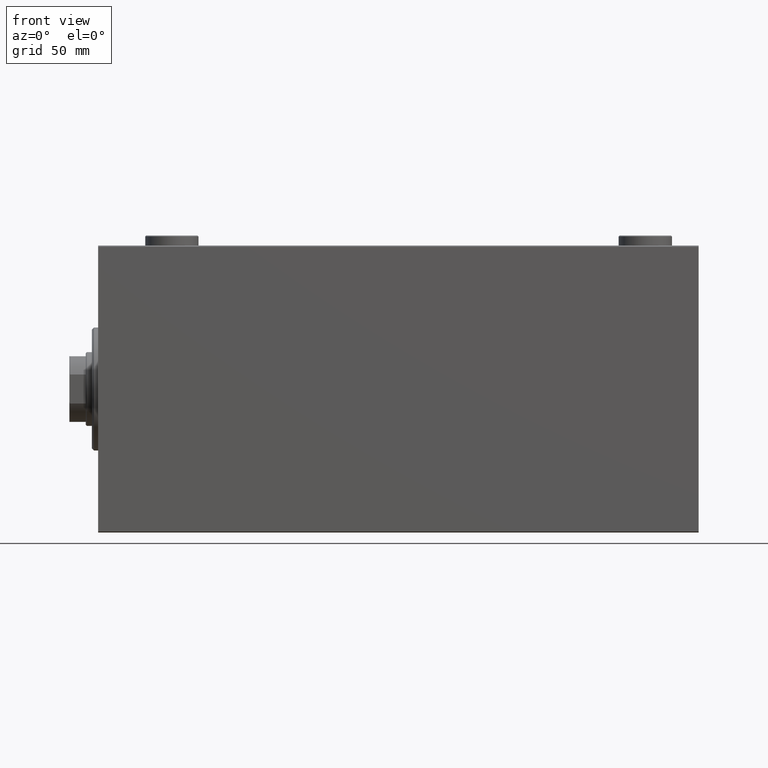
[diagram: clean part render]
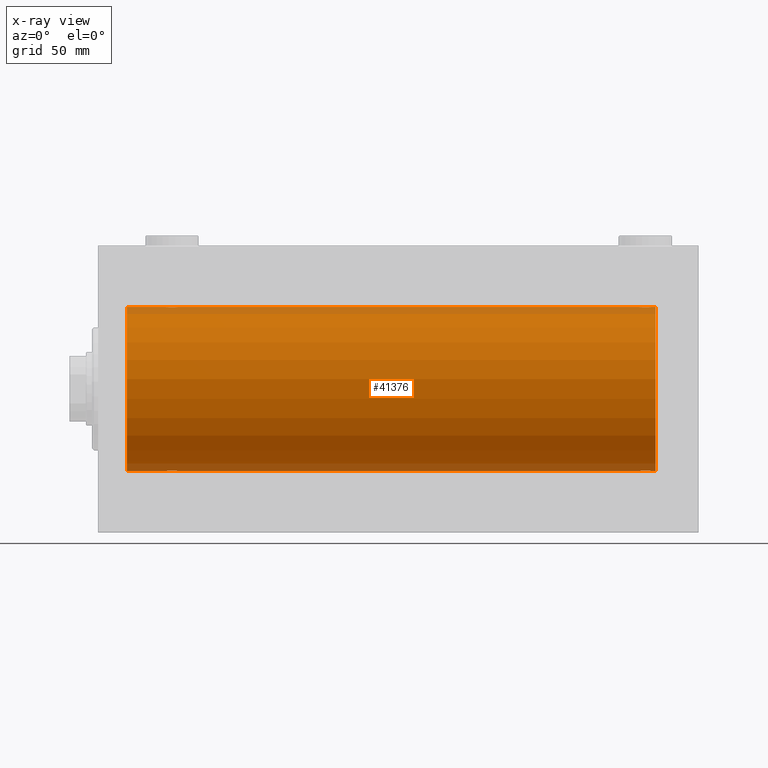
[diagram: x-ray — body ghosted, one internal face saturated and labeled with its STEP entity id]
A machine part, front view, then the same camera in x-ray: the body is ghosted and one INTERNAL B-rep face — a face not visible from any outside direction — is saturated and labeled: STEP entity #41376.
In plain terms, the highlighted cylindrical surface (partial cylindrical patch) has radius 40 mm, axis along (-1, -0, -0).
Its self-contained STEP definition (entity closure, byte-faithful):
#123 = CARTESIAN_POINT ( 'NONE',  ( 38.99999999999999289, -0.1957844162750510819, -40.00000000000000711 ) ) ;
#137 = CARTESIAN_POINT ( 'NONE',  ( 34.01538552187719233, -2.258217541132905293, 39.93644519243653690 ) ) ;
#347 = CARTESIAN_POINT ( 'NONE',  ( 33.30462992291564461, -1.331594428131640528, -39.97823692017208685 ) ) ;
#1217 = B_SPLINE_CURVE_WITH_KNOTS ( 'NONE', 3,
 ( #41944, #123, #7513, #38699, #35231, #42399, #20903, #31091, #17437, #17207, #10283, #41712, #34550, #7286, #10735, #21369, #2909, #35460, #24383, #45646, #31776, #10055, #31319, #14213, #27637, #17899, #24146, #31998, #347, #38470, #6590, #14437 ),
 .UNSPECIFIED., .F., .F.,
 ( 4, 2, 2, 2, 2, 2, 2, 2, 2, 2, 2, 2, 2, 2, 2, 4 ),
 ( 0.009382660366305110508, 0.009968941372944146312, 0.01055522237958318212, 0.01114150338622221792, 0.01172778439286125372, 0.01231406539950028953, 0.01290034640613932533, 0.01348662741277836113, 0.01407290841941739694, 0.01465918942605643274, 0.01524547043269546855, 0.01583175143933450435, 0.01641803244597354189, 0.01700431345261257596, 0.01759059445925161003, 0.01876315647252968163 ),
 .UNSPECIFIED. ) ;
#1549 = AXIS2_PLACEMENT_3D ( 'NONE', #11753, #14545, #7616 ) ;
#1778 = CARTESIAN_POINT ( 'NONE',  ( 268.9813627951422177, -2.261082456166725763, 39.93628274425758917 ) ) ;
#2001 = CARTESIAN_POINT ( 'NONE',  ( 269.2582967032049623, -1.984537326394329781, 39.95097977400578060 ) ) ;
#2027 = DIRECTION ( 'NONE',  ( -1.000000000000000000, -0.000000000000000000, -0.000000000000000000 ) ) ;
#2072 = LINE ( 'NONE', #16165, #32338 ) ;
#2218 = CARTESIAN_POINT ( 'NONE',  ( 272.0000000000000000, 0.000000000000000000, 40.00000000000000000 ) ) ;
#2333 = CARTESIAN_POINT ( 'NONE',  ( 266.6089030749068343, -2.980812880639920337, -39.88879797994688658 ) ) ;
#2780 = VERTEX_POINT ( 'NONE', #8063 ) ;
#2785 = CARTESIAN_POINT ( 'NONE',  ( 269.9042517365134586, -0.7773146824711015812, -39.99291453282344122 ) ) ;
#2873 = CIRCLE ( 'NONE', #34592, 40.00000000000000000 ) ;
#2909 = CARTESIAN_POINT ( 'NONE',  ( 36.20041286019198168, -2.999840380514735116, -39.88735335562824957 ) ) ;
#3371 = CARTESIAN_POINT ( 'NONE',  ( 37.32853644746295885, -2.696981015661930936, 39.90904630908465833 ) ) ;
#3590 = B_SPLINE_CURVE_WITH_KNOTS ( 'NONE', 3,
 ( #24349, #16329, #26964, #12387, #12624, #37343, #44526, #26733, #10476, #9391, #34741, #19564, #23489, #37575, #31285, #38433, #34968, #13706, #41907, #17406, #24575, #33424, #33655, #5243, #1778, #2001, #16098, #40820, #23259, #5694, #25258, #38891 ),
 .UNSPECIFIED., .F., .F.,
 ( 4, 2, 2, 2, 2, 2, 2, 2, 2, 2, 2, 2, 2, 2, 2, 4 ),
 ( 0.009382660366305044589, 0.009968941372944078658, 0.01055522237958311273, 0.01114150338622214680, 0.01172778439286118086, 0.01231406539950021493, 0.01290034640613924727, 0.01348662741277828134, 0.01407290841941731541, 0.01465918942605634948, 0.01524547043269538354, 0.01583175143933441761, 0.01641803244597345168, 0.01700431345261248575, 0.01759059445925151982, 0.01876315647252958796 ),
 .UNSPECIFIED. ) ;
#4521 = VECTOR ( 'NONE', #28830, 1000.000000000000000 ) ;
#5243 = CARTESIAN_POINT ( 'NONE',  ( 268.8269018463240627, -2.387636253591819191, 39.92882473497732576 ) ) ;
#5452 = VECTOR ( 'NONE', #40898, 1000.000000000000000 ) ;
#5694 = CARTESIAN_POINT ( 'NONE',  ( 269.9202617499163921, -0.7903958539027420294, 39.99381900068937057 ) ) ;
#5919 = CARTESIAN_POINT ( 'NONE',  ( 33.09574826348647036, -0.7773146824711036906, 39.99291453282343412 ) ) ;
#6019 = CARTESIAN_POINT ( 'NONE',  ( 269.8466527301315523, -0.9668189122103195698, -39.98872185468385965 ) ) ;
#6047 = EDGE_LOOP ( 'NONE', ( #12898, #25089, #18511, #26399, #15179, #22497, #20520, #43237, #23898, #17657, #35484, #29899 ) ) ;
#6162 = EDGE_CURVE ( 'NONE', #38399, #2780, #2873, .T. ) ;
#6246 = CARTESIAN_POINT ( 'NONE',  ( 266.8043946892691451, -3.000157693440651752, -39.88732948994959315 ) ) ;
#6468 = CARTESIAN_POINT ( 'NONE',  ( 265.0186372048576686, -2.261082456166741750, -39.93628274425758207 ) ) ;
#6590 = CARTESIAN_POINT ( 'NONE',  ( 32.99999999999998579, -0.3964922677423637909, -39.99999999999998579 ) ) ;
#7066 = CARTESIAN_POINT ( 'NONE',  ( 36.96489325853514174, -2.847401743820462183, 39.89859630624607689 ) ) ;
#7286 = CARTESIAN_POINT ( 'NONE',  ( 36.96938341894465907, -2.845855236045336856, -39.89870693240651178 ) ) ;
#7307 = VERTEX_POINT ( 'NONE', #29473 ) ;
#7332 = CARTESIAN_POINT ( 'NONE',  ( 263.9999999999999432, -1.484439008399638965E-23, 40.00000000000000000 ) ) ;
#7375 = CARTESIAN_POINT ( 'NONE',  ( 263.9999999999999432, -1.926289969554161054E-14, -40.00000000000000000 ) ) ;
#7513 = CARTESIAN_POINT ( 'NONE',  ( 38.98101877110926239, -0.3904143323715931757, -39.99856256910221219 ) ) ;
#7616 = DIRECTION ( 'NONE',  ( 0.000000000000000000, 0.000000000000000000, 1.000000000000000000 ) ) ;
#7977 = DIRECTION ( 'NONE',  ( -1.000000000000000000, -0.000000000000000000, -0.000000000000000000 ) ) ;
#8063 = CARTESIAN_POINT ( 'NONE',  ( 272.0000000000000000, 0.000000000000000000, 40.00000000000000000 ) ) ;
#8103 = EDGE_CURVE ( 'NONE', #41519, #42830, #25794, .T. ) ;
#8374 = B_SPLINE_CURVE_WITH_KNOTS ( 'NONE', 3,
 ( #41134, #27054, #37671, #2785, #6019, #23806, #33982, #9486, #30745, #13171, #45520, #20111, #37899, #13855, #24495, #27287, #38581, #6246, #2333, #20336, #17091, #27976, #10393, #16415, #6468, #16868, #44611, #30979, #20563, #45070, #41596, #24033 ),
 .UNSPECIFIED., .F., .F.,
 ( 4, 2, 2, 2, 2, 2, 2, 2, 2, 2, 2, 2, 2, 2, 2, 4 ),
 ( 0.009382660366305030711, 0.009968941372944066515, 0.01055522237958310232, 0.01114150338622213812, 0.01172778439286117393, 0.01231406539950020973, 0.01290034640613924553, 0.01348662741277828134, 0.01407290841941731541, 0.01465918942605635295, 0.01524547043269538875, 0.01583175143933442455, 0.01641803244597345862, 0.01700431345261249616, 0.01759059445925153023, 0.01876315647252959837 ),
 .UNSPECIFIED. ) ;
#8962 = CARTESIAN_POINT ( 'NONE',  ( 272.0000000000000000, 4.898587196589413026E-15, -40.00000000000000000 ) ) ;
#9370 = DIRECTION ( 'NONE',  ( -1.000000000000000000, -0.000000000000000000, -0.000000000000000000 ) ) ;
#9391 = CARTESIAN_POINT ( 'NONE',  ( 265.0153855218772492, -2.258217541132919504, 39.93644519243652979 ) ) ;
#9394 = EDGE_CURVE ( 'NONE', #7307, #21052, #8374, .T. ) ;
#9486 = CARTESIAN_POINT ( 'NONE',  ( 269.3850760091535790, -1.830402106103521387, -39.95843610133493229 ) ) ;
#9617 = CARTESIAN_POINT ( 'NONE',  ( 33.15334726986859692, -0.9668189122103387767, 39.98872185468385254 ) ) ;
#9690 = CARTESIAN_POINT ( 'NONE',  ( 32.99999999999999289, 4.605585004310627937E-15, -40.00000000000000000 ) ) ;
#10055 = CARTESIAN_POINT ( 'NONE',  ( 34.67146355253704826, -2.696981015661917613, -39.90904630908468675 ) ) ;
#10283 = CARTESIAN_POINT ( 'NONE',  ( 37.83044822822401443, -2.384933850258100119, -39.92898715513241115 ) ) ;
#10393 = CARTESIAN_POINT ( 'NONE',  ( 265.4991153159596138, -2.604941918888328711, -39.91523680494983495 ) ) ;
#10476 = CARTESIAN_POINT ( 'NONE',  ( 264.7390238300525311, -1.981471132463184848, 39.95113231465138881 ) ) ;
#10735 = CARTESIAN_POINT ( 'NONE',  ( 36.77869523415743913, -2.903766417398228938, -39.89448096967571900 ) ) ;
#11003 = VERTEX_POINT ( 'NONE', #33134 ) ;
#11204 = CARTESIAN_POINT ( 'NONE',  ( 33.39566400087915810, -1.502129635934004614, 39.97212271185186694 ) ) ;
#11753 = CARTESIAN_POINT ( 'NONE',  ( 272.0000000000000000, 0.000000000000000000, 0.000000000000000000 ) ) ;
#12387 = CARTESIAN_POINT ( 'NONE',  ( 264.0957482634864277, -0.7773146824711030245, 39.99291453282344833 ) ) ;
#12624 = CARTESIAN_POINT ( 'NONE',  ( 264.1533472698686182, -0.9668189122103363342, 39.98872185468384544 ) ) ;
#12898 = ORIENTED_EDGE ( 'NONE', *, *, #6162, .F. ) ;
#13171 = CARTESIAN_POINT ( 'NONE',  ( 268.9846144781228645, -2.258217541132895967, -39.93644519243652979 ) ) ;
#13706 = CARTESIAN_POINT ( 'NONE',  ( 267.1956053107309117, -3.000157693440636208, 39.88732948994960026 ) ) ;
#13855 = CARTESIAN_POINT ( 'NONE',  ( 267.9693834189445738, -2.845855236045354619, -39.89870693240649757 ) ) ;
#14213 = CARTESIAN_POINT ( 'NONE',  ( 34.17309815367588754, -2.387636253591812974, -39.92882473497732576 ) ) ;
#14225 = CARTESIAN_POINT ( 'NONE',  ( 33.73902383005257377, -1.981471132463168416, 39.95113231465138881 ) ) ;
#14437 = CARTESIAN_POINT ( 'NONE',  ( 32.99999999999999289, 4.605585004310627937E-15, -40.00000000000000000 ) ) ;
#14452 = CARTESIAN_POINT ( 'NONE',  ( 38.60188728128492386, -1.506322235190783232, 39.97196309111974699 ) ) ;
#14512 = VERTEX_POINT ( 'NONE', #9690 ) ;
#14545 = DIRECTION ( 'NONE',  ( -1.000000000000000000, -0.000000000000000000, -0.000000000000000000 ) ) ;
#14685 = LINE ( 'NONE', #25310, #24090 ) ;
#14952 = CARTESIAN_POINT ( 'NONE',  ( 272.0000000000000000, 4.898587196589413026E-15, -40.00000000000000000 ) ) ;
#15179 = ORIENTED_EDGE ( 'NONE', *, *, #33094, .T. ) ;
#15805 = EDGE_CURVE ( 'NONE', #38399, #7307, #26812, .T. ) ;
#16098 = CARTESIAN_POINT ( 'NONE',  ( 269.3825168091145770, -1.833695109615707697, 39.95828327492363741 ) ) ;
#16165 = CARTESIAN_POINT ( 'NONE',  ( 272.0000000000000000, 0.000000000000000000, 40.00000000000000000 ) ) ;
#16329 = CARTESIAN_POINT ( 'NONE',  ( 263.9999999999999432, -0.1957844162750541073, 39.99999999999999289 ) ) ;
#16415 = CARTESIAN_POINT ( 'NONE',  ( 265.1730981536758804, -2.387636253591832514, -39.92882473497732576 ) ) ;
#16868 = CARTESIAN_POINT ( 'NONE',  ( 264.7417032967949808, -1.984537326394346213, -39.95097977400578060 ) ) ;
#17091 = CARTESIAN_POINT ( 'NONE',  ( 266.0351067414648583, -2.847401743820479503, -39.89859630624608400 ) ) ;
#17207 = CARTESIAN_POINT ( 'NONE',  ( 37.98461447812278635, -2.258217541132897743, -39.93644519243654400 ) ) ;
#17406 = CARTESIAN_POINT ( 'NONE',  ( 267.7745567882633395, -2.904869018727233687, 39.89440043036668726 ) ) ;
#17437 = CARTESIAN_POINT ( 'NONE',  ( 38.26097616994740491, -1.981471132463162643, -39.95113231465139592 ) ) ;
#17448 = CARTESIAN_POINT ( 'NONE',  ( 34.49556917086533758, -2.602909538701760006, 39.91537030566259148 ) ) ;
#17657 = ORIENTED_EDGE ( 'NONE', *, *, #30592, .F. ) ;
#17684 = CARTESIAN_POINT ( 'NONE',  ( 34.16955177177597847, -2.384933850258112553, 39.92898715513240404 ) ) ;
#17899 = CARTESIAN_POINT ( 'NONE',  ( 33.74170329679496660, -1.984537326394300250, -39.95097977400577349 ) ) ;
#18511 = ORIENTED_EDGE ( 'NONE', *, *, #9394, .T. ) ;
#18679 = EDGE_CURVE ( 'NONE', #11003, #25017, #45090, .T. ) ;
#19564 = CARTESIAN_POINT ( 'NONE',  ( 265.4955691708652239, -2.602909538701744019, 39.91537030566259148 ) ) ;
#20111 = CARTESIAN_POINT ( 'NONE',  ( 268.5044308291347193, -2.602909538701752457, -39.91537030566259148 ) ) ;
#20336 = CARTESIAN_POINT ( 'NONE',  ( 266.2254432117366036, -2.904869018727250118, -39.89440043036668015 ) ) ;
#20520 = ORIENTED_EDGE ( 'NONE', *, *, #8103, .T. ) ;
#20563 = CARTESIAN_POINT ( 'NONE',  ( 264.3046299229155807, -1.331594428131661179, -39.97823692017209396 ) ) ;
#20903 = CARTESIAN_POINT ( 'NONE',  ( 38.60433599912083480, -1.502129635934000396, -39.97212271185185273 ) ) ;
#20917 = CARTESIAN_POINT ( 'NONE',  ( 37.50088468404035069, -2.604941918888315833, 39.91523680494983495 ) ) ;
#21052 = VERTEX_POINT ( 'NONE', #7375 ) ;
#21369 = CARTESIAN_POINT ( 'NONE',  ( 36.39522483453576029, -2.980272303779541332, -39.88883864243169342 ) ) ;
#21370 = AXIS2_PLACEMENT_3D ( 'NONE', #33830, #31062, #24114 ) ;
#21695 = FACE_OUTER_BOUND ( 'NONE', #6047, .T. ) ;
#22486 = EDGE_CURVE ( 'NONE', #31563, #30035, #3590, .T. ) ;
#22497 = ORIENTED_EDGE ( 'NONE', *, *, #38084, .T. ) ;
#23259 = CARTESIAN_POINT ( 'NONE',  ( 269.6953700770843056, -1.331594428131646524, 39.97823692017208685 ) ) ;
#23338 = CARTESIAN_POINT ( 'NONE',  ( 272.0000000000000000, 4.898587196589413026E-15, -40.00000000000000000 ) ) ;
#23489 = CARTESIAN_POINT ( 'NONE',  ( 265.6677573113412905, -2.695129988695732504, 39.90917164320281785 ) ) ;
#23712 = CARTESIAN_POINT ( 'NONE',  ( 33.30278659419118270, -1.327859336864150253, 39.97836169682017982 ) ) ;
#23806 = CARTESIAN_POINT ( 'NONE',  ( 269.6972134058087818, -1.327859336864133821, -39.97836169682017982 ) ) ;
#23898 = ORIENTED_EDGE ( 'NONE', *, *, #18679, .T. ) ;
#24033 = CARTESIAN_POINT ( 'NONE',  ( 263.9999999999999432, -1.926289969554161054E-14, -40.00000000000000000 ) ) ;
#24090 = VECTOR ( 'NONE', #7977, 1000.000000000000000 ) ;
#24114 = DIRECTION ( 'NONE',  ( 0.000000000000000000, 0.000000000000000000, 1.000000000000000000 ) ) ;
#24146 = CARTESIAN_POINT ( 'NONE',  ( 33.61748319088535908, -1.833695109615714802, -39.95828327492363741 ) ) ;
#24349 = CARTESIAN_POINT ( 'NONE',  ( 263.9999999999999432, -1.484439008399638965E-23, 40.00000000000000000 ) ) ;
#24383 = CARTESIAN_POINT ( 'NONE',  ( 35.60890307490667794, -2.980812880639892359, -39.88879797994688658 ) ) ;
#24397 = CARTESIAN_POINT ( 'NONE',  ( 35.60477516546423260, -2.980272303779553766, 39.88883864243167920 ) ) ;
#24495 = CARTESIAN_POINT ( 'NONE',  ( 267.7786952341574533, -2.903766417398232047, -39.89448096967571189 ) ) ;
#24575 = CARTESIAN_POINT ( 'NONE',  ( 267.9648932585351417, -2.847401743820463516, 39.89859630624608400 ) ) ;
#24667 = LINE ( 'NONE', #14952, #4521 ) ;
#24852 = CARTESIAN_POINT ( 'NONE',  ( 35.22130476584258219, -2.903766417398241373, 39.89448096967571189 ) ) ;
#25017 = VERTEX_POINT ( 'NONE', #39315 ) ;
#25089 = ORIENTED_EDGE ( 'NONE', *, *, #15805, .T. ) ;
#25258 = CARTESIAN_POINT ( 'NONE',  ( 269.9999999999999432, -0.3964922677423687869, 40.00000000000000000 ) ) ;
#25310 = CARTESIAN_POINT ( 'NONE',  ( 272.0000000000000000, 0.000000000000000000, 40.00000000000000000 ) ) ;
#25794 = CIRCLE ( 'NONE', #21370, 40.00000000000000000 ) ;
#26399 = ORIENTED_EDGE ( 'NONE', *, *, #43458, .T. ) ;
#26606 = CARTESIAN_POINT ( 'NONE',  ( 39.00000000000000000, 4.898587181754971267E-15, -40.00000000000000000 ) ) ;
#26733 = CARTESIAN_POINT ( 'NONE',  ( 264.6149239908463642, -1.830402106103510729, 39.95843610133493229 ) ) ;
#26812 = LINE ( 'NONE', #23338, #5452 ) ;
#26964 = CARTESIAN_POINT ( 'NONE',  ( 264.0189812288907660, -0.3904143323715977831, 39.99856256910221219 ) ) ;
#26994 = CARTESIAN_POINT ( 'NONE',  ( 14.00000000000001243, 4.898587196589413026E-15, -40.00000000000000000 ) ) ;
#27054 = CARTESIAN_POINT ( 'NONE',  ( 269.9999999999999432, -0.1957844162750511097, -39.99999999999999289 ) ) ;
#27146 = CARTESIAN_POINT ( 'NONE',  ( 272.0000000000000000, 0.000000000000000000, 0.000000000000000000 ) ) ;
#27163 = CARTESIAN_POINT ( 'NONE',  ( 269.9999999999999432, -3.437435726281339749E-15, 40.00000000000000000 ) ) ;
#27207 = EDGE_CURVE ( 'NONE', #11003, #42830, #14685, .T. ) ;
#27287 = CARTESIAN_POINT ( 'NONE',  ( 267.3952248345357816, -2.980272303779554655, -39.88883864243167920 ) ) ;
#27637 = CARTESIAN_POINT ( 'NONE',  ( 34.01863720485770415, -2.261082456166700005, -39.93628274425758917 ) ) ;
#27976 = CARTESIAN_POINT ( 'NONE',  ( 265.6714635525369772, -2.696981015661948700, -39.90904630908467254 ) ) ;
#28133 = DIRECTION ( 'NONE',  ( -1.000000000000000000, -0.000000000000000000, -0.000000000000000000 ) ) ;
#28341 = CARTESIAN_POINT ( 'NONE',  ( 34.66775731134134730, -2.695129988695744494, 39.90917164320281074 ) ) ;
#28559 = CARTESIAN_POINT ( 'NONE',  ( 36.39109692509333627, -2.980812880639903906, 39.88879797994688658 ) ) ;
#28830 = DIRECTION ( 'NONE',  ( -1.000000000000000000, -0.000000000000000000, -0.000000000000000000 ) ) ;
#29110 = CYLINDRICAL_SURFACE ( 'NONE', #1549, 40.00000000000000000 ) ;
#29473 = CARTESIAN_POINT ( 'NONE',  ( 269.9999999999999432, 4.898587181745110505E-15, -40.00000000000000000 ) ) ;
#29899 = ORIENTED_EDGE ( 'NONE', *, *, #43675, .F. ) ;
#30035 = VERTEX_POINT ( 'NONE', #27163 ) ;
#30592 = EDGE_CURVE ( 'NONE', #31563, #25017, #2072, .T. ) ;
#30614 = DIRECTION ( 'NONE',  ( -1.000000000000000000, 0.000000000000000000, 0.000000000000000000 ) ) ;
#30745 = CARTESIAN_POINT ( 'NONE',  ( 269.2609761699474120, -1.981471132463155316, -39.95113231465140302 ) ) ;
#30979 = CARTESIAN_POINT ( 'NONE',  ( 264.3981127187150264, -1.506322235190789893, -39.97196309111975410 ) ) ;
#31062 = DIRECTION ( 'NONE',  ( -1.000000000000000000, 0.000000000000000000, 0.000000000000000000 ) ) ;
#31091 = CARTESIAN_POINT ( 'NONE',  ( 38.38507600915353635, -1.830402106103512505, -39.95843610133493229 ) ) ;
#31285 = CARTESIAN_POINT ( 'NONE',  ( 266.2213047658424898, -2.903766417398230715, 39.89448096967571189 ) ) ;
#31319 = CARTESIAN_POINT ( 'NONE',  ( 34.49911531595966352, -2.604941918888306507, -39.91523680494982784 ) ) ;
#31332 = CARTESIAN_POINT ( 'NONE',  ( 36.19560531073086906, -3.000157693440643758, 39.88732948994960026 ) ) ;
#31563 = VERTEX_POINT ( 'NONE', #7332 ) ;
#31776 = CARTESIAN_POINT ( 'NONE',  ( 35.03510674146484405, -2.847401743820449305, -39.89859630624607689 ) ) ;
#31790 = CARTESIAN_POINT ( 'NONE',  ( 37.82690184632411246, -2.387636253591820079, 39.92882473497731866 ) ) ;
#31998 = CARTESIAN_POINT ( 'NONE',  ( 33.39811271871507614, -1.506322235190781456, -39.97196309111974699 ) ) ;
#32338 = VECTOR ( 'NONE', #28133, 1000.000000000000000 ) ;
#33094 = EDGE_CURVE ( 'NONE', #33610, #14512, #1217, .T. ) ;
#33134 = CARTESIAN_POINT ( 'NONE',  ( 32.99999999999999289, -1.483452932268112700E-23, 40.00000000000000000 ) ) ;
#33424 = CARTESIAN_POINT ( 'NONE',  ( 268.3285364474628523, -2.696981015661932712, 39.90904630908467254 ) ) ;
#33451 = LINE ( 'NONE', #8962, #34671 ) ;
#33610 = VERTEX_POINT ( 'NONE', #26606 ) ;
#33655 = CARTESIAN_POINT ( 'NONE',  ( 268.5008846840403294, -2.604941918888314056, 39.91523680494982784 ) ) ;
#33830 = CARTESIAN_POINT ( 'NONE',  ( 14.00000000000001243, 0.000000000000000000, 0.000000000000000000 ) ) ;
#33982 = CARTESIAN_POINT ( 'NONE',  ( 269.6043359991208490, -1.502129635934004837, -39.97212271185185983 ) ) ;
#34550 = CARTESIAN_POINT ( 'NONE',  ( 37.33224268865864559, -2.695129988695729839, -39.90917164320280364 ) ) ;
#34592 = AXIS2_PLACEMENT_3D ( 'NONE', #27146, #30614, #39938 ) ;
#34671 = VECTOR ( 'NONE', #2027, 1000.000000000000000 ) ;
#34741 = CARTESIAN_POINT ( 'NONE',  ( 265.1695517717758435, -2.384933850258093013, 39.92898715513240404 ) ) ;
#34968 = CARTESIAN_POINT ( 'NONE',  ( 266.7995871398080112, -2.999840380514743110, 39.88735335562824957 ) ) ;
#35017 = CARTESIAN_POINT ( 'NONE',  ( 37.98136279514229585, -2.261082456166707111, 39.93628274425758207 ) ) ;
#35231 = CARTESIAN_POINT ( 'NONE',  ( 38.84665273013138176, -0.9668189122103333366, -39.98872185468385254 ) ) ;
#35460 = CARTESIAN_POINT ( 'NONE',  ( 35.80439468926913804, -3.000157693440631324, -39.88732948994960026 ) ) ;
#35477 = CARTESIAN_POINT ( 'NONE',  ( 35.79958713980802543, -2.999840380514749327, 39.88735335562824247 ) ) ;
#35484 = ORIENTED_EDGE ( 'NONE', *, *, #22486, .T. ) ;
#37343 = CARTESIAN_POINT ( 'NONE',  ( 264.3027865941911614, -1.327859336864147810, 39.97836169682016561 ) ) ;
#37568 = CARTESIAN_POINT ( 'NONE',  ( 32.99999999999997158, -0.1957844162750552452, 40.00000000000000000 ) ) ;
#37575 = CARTESIAN_POINT ( 'NONE',  ( 266.0306165810552557, -2.845855236045339076, 39.89870693240651178 ) ) ;
#37671 = CARTESIAN_POINT ( 'NONE',  ( 269.9810187711091203, -0.3904143323715956182, -39.99856256910220509 ) ) ;
#37899 = CARTESIAN_POINT ( 'NONE',  ( 268.3322426886587095, -2.695129988695749379, -39.90917164320281074 ) ) ;
#38084 = EDGE_CURVE ( 'NONE', #14512, #41519, #33451, .T. ) ;
#38251 = CARTESIAN_POINT ( 'NONE',  ( 38.38251680911464803, -1.833695109615718355, 39.95828327492363741 ) ) ;
#38399 = VERTEX_POINT ( 'NONE', #42558 ) ;
#38433 = CARTESIAN_POINT ( 'NONE',  ( 266.6047751654642752, -2.980272303779546217, 39.88883864243167920 ) ) ;
#38470 = CARTESIAN_POINT ( 'NONE',  ( 33.07973825008353685, -0.7903958539027382546, -39.99381900068937767 ) ) ;
#38581 = CARTESIAN_POINT ( 'NONE',  ( 267.2004128601919888, -2.999840380514759985, -39.88735335562824247 ) ) ;
#38699 = CARTESIAN_POINT ( 'NONE',  ( 38.90425173651351543, -0.7773146824710984726, -39.99291453282344122 ) ) ;
#38714 = CARTESIAN_POINT ( 'NONE',  ( 39.00000000000000000, 1.037715139942869821E-15, 40.00000000000000000 ) ) ;
#38891 = CARTESIAN_POINT ( 'NONE',  ( 269.9999999999999432, -3.437435726281339749E-15, 40.00000000000000000 ) ) ;
#38942 = CARTESIAN_POINT ( 'NONE',  ( 33.61492399084646365, -1.830402106103518722, 39.95843610133494650 ) ) ;
#39177 = CARTESIAN_POINT ( 'NONE',  ( 35.03061658105534804, -2.845855236045349734, 39.89870693240651889 ) ) ;
#39315 = CARTESIAN_POINT ( 'NONE',  ( 39.00000000000000000, 1.037715139942869821E-15, 40.00000000000000000 ) ) ;
#39938 = DIRECTION ( 'NONE',  ( 0.000000000000000000, 0.000000000000000000, 1.000000000000000000 ) ) ;
#40820 = CARTESIAN_POINT ( 'NONE',  ( 269.6018872812848031, -1.506322235190773240, 39.97196309111975410 ) ) ;
#40898 = DIRECTION ( 'NONE',  ( -1.000000000000000000, -0.000000000000000000, -0.000000000000000000 ) ) ;
#41038 = CARTESIAN_POINT ( 'NONE',  ( 32.99999999999999289, -1.483452932268112700E-23, 40.00000000000000000 ) ) ;
#41134 = CARTESIAN_POINT ( 'NONE',  ( 269.9999999999999432, 4.898587181745110505E-15, -40.00000000000000000 ) ) ;
#41271 = CARTESIAN_POINT ( 'NONE',  ( 33.01898122889073051, -0.3904143323715976166, 39.99856256910221219 ) ) ;
#41376 = ADVANCED_FACE ( 'NONE', ( #21695 ), #29110, .F. ) ;
#41519 = VERTEX_POINT ( 'NONE', #26994 ) ;
#41596 = CARTESIAN_POINT ( 'NONE',  ( 263.9999999999998863, -0.3964922677423949327, -40.00000000000000000 ) ) ;
#41712 = CARTESIAN_POINT ( 'NONE',  ( 37.50443082913466242, -2.602909538701748016, -39.91537030566259148 ) ) ;
#41713 = LINE ( 'NONE', #2218, #44407 ) ;
#41907 = CARTESIAN_POINT ( 'NONE',  ( 267.3910969250932226, -2.980812880639903906, 39.88879797994688658 ) ) ;
#41944 = CARTESIAN_POINT ( 'NONE',  ( 39.00000000000000000, 4.898587181754971267E-15, -40.00000000000000000 ) ) ;
#41959 = CARTESIAN_POINT ( 'NONE',  ( 38.92026174991647025, -0.7903958539027386987, 39.99381900068935636 ) ) ;
#42185 = CARTESIAN_POINT ( 'NONE',  ( 38.69537007708435539, -1.331594428131644747, 39.97823692017209396 ) ) ;
#42399 = CARTESIAN_POINT ( 'NONE',  ( 38.69721340580881730, -1.327859336864144035, -39.97836169682019403 ) ) ;
#42414 = CARTESIAN_POINT ( 'NONE',  ( 39.00000000000000711, -0.3964922677423692865, 40.00000000000000711 ) ) ;
#42558 = CARTESIAN_POINT ( 'NONE',  ( 272.0000000000000000, 4.898587196589413026E-15, -40.00000000000000000 ) ) ;
#42638 = CARTESIAN_POINT ( 'NONE',  ( 38.25829670320502629, -1.984537326394305801, 39.95097977400578060 ) ) ;
#42830 = VERTEX_POINT ( 'NONE', #45351 ) ;
#43237 = ORIENTED_EDGE ( 'NONE', *, *, #27207, .F. ) ;
#43458 = EDGE_CURVE ( 'NONE', #21052, #33610, #24667, .T. ) ;
#43675 = EDGE_CURVE ( 'NONE', #2780, #30035, #41713, .T. ) ;
#44407 = VECTOR ( 'NONE', #9370, 1000.000000000000000 ) ;
#44526 = CARTESIAN_POINT ( 'NONE',  ( 264.3956640008790373, -1.502129635933994400, 39.97212271185185983 ) ) ;
#44611 = CARTESIAN_POINT ( 'NONE',  ( 264.6174831908853662, -1.833695109615725016, -39.95828327492363741 ) ) ;
#45070 = CARTESIAN_POINT ( 'NONE',  ( 264.0797382500834942, -0.7903958539027577945, -39.99381900068935636 ) ) ;
#45090 = B_SPLINE_CURVE_WITH_KNOTS ( 'NONE', 3,
 ( #41038, #37568, #41271, #5919, #9617, #23712, #11204, #38942, #14225, #137, #17684, #17448, #28341, #39177, #24852, #24397, #35477, #31332, #28559, #45426, #7066, #3371, #20917, #31790, #35017, #42638, #38251, #14452, #42185, #41959, #42414, #38714 ),
 .UNSPECIFIED., .F., .F.,
 ( 4, 2, 2, 2, 2, 2, 2, 2, 2, 2, 2, 2, 2, 2, 2, 4 ),
 ( 0.009382660366305105304, 0.009968941372944142842, 0.01055522237958318038, 0.01114150338622221965, 0.01172778439286125719, 0.01231406539950029473, 0.01290034640613933400, 0.01348662741277837154, 0.01407290841941740908, 0.01465918942605644835, 0.01524547043269548416, 0.01583175143933452517, 0.01641803244597356271, 0.01700431345261260024, 0.01759059445925163778, 0.01876315647252971286 ),
 .UNSPECIFIED. ) ;
#45351 = CARTESIAN_POINT ( 'NONE',  ( 14.00000000000001243, 0.000000000000000000, 40.00000000000000000 ) ) ;
#45426 = CARTESIAN_POINT ( 'NONE',  ( 36.77455678826341057, -2.904869018727228358, 39.89440043036668015 ) ) ;
#45520 = CARTESIAN_POINT ( 'NONE',  ( 268.8304482282239292, -2.384933850258100563, -39.92898715513239694 ) ) ;
#45646 = CARTESIAN_POINT ( 'NONE',  ( 35.22544321173658943, -2.904869018727217700, -39.89440043036668726 ) ) ;